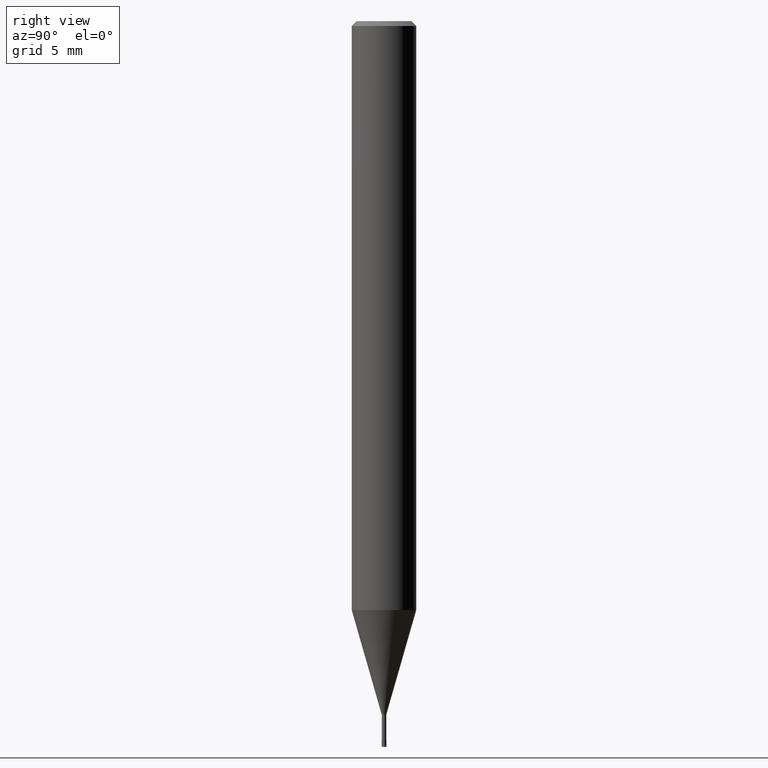
[diagram: clean part render]
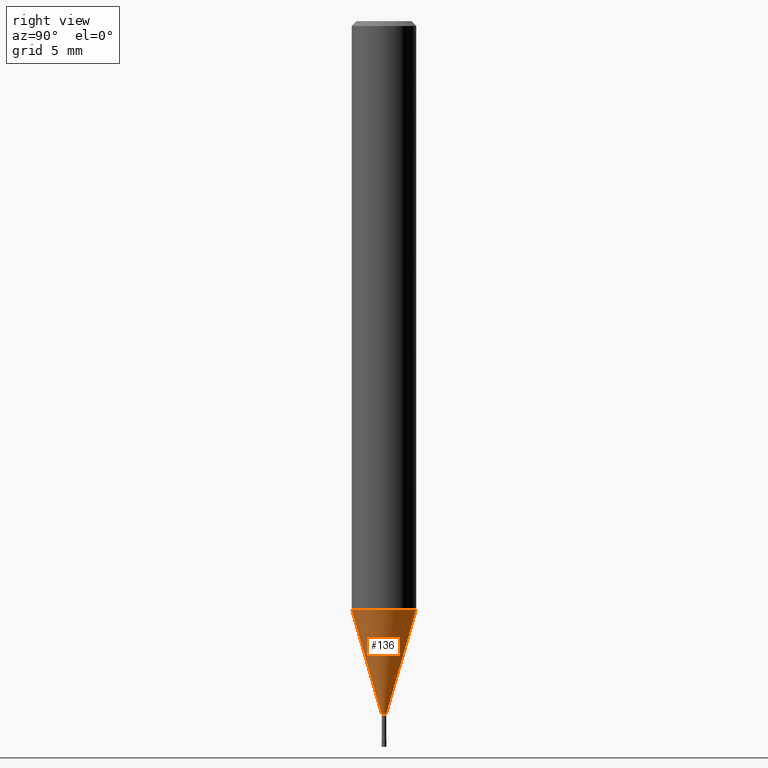
[diagram: same view with one face highlighted and labeled with its STEP entity id]
A machine part, right view. The second image highlights one B-rep face of the part: STEP entity #136.
In plain terms, the highlighted conical surface has half-angle 15.999 deg.
Its self-contained STEP definition (entity closure, byte-faithful):
#118=VERTEX_POINT('',#260);
#136=ADVANCED_FACE('',(#284),#285,.T.);
#142=EDGE_CURVE('',#118,#150,#291,.T.);
#150=VERTEX_POINT('',#299);
#158=VERTEX_POINT('',#307);
#182=EDGE_CURVE('',#118,#186,#332,.T.);
#186=VERTEX_POINT('',#336);
#190=EDGE_CURVE('',#186,#158,#341,.T.);
#192=EDGE_CURVE('',#158,#150,#343,.T.);
#260=CARTESIAN_POINT('',(0.0,1.99995,-36.513));
#284=FACE_OUTER_BOUND('',#441,.T.);
#285=CONICAL_SURFACE('',#442,1.06995,0.27923596926092);
#291=CIRCLE('',#450,1.99995);
#299=CARTESIAN_POINT('',(2.44915147732706E-016,-1.99995,-36.513));
#307=CARTESIAN_POINT('',(1.71383659217442E-017,-0.13995,-43.0));
#332=LINE('',#503,#504);
#336=CARTESIAN_POINT('',(0.0,0.13995,-43.0));
#341=CIRCLE('',#515,0.13995);
#343=LINE('',#518,#519);
#441=EDGE_LOOP('',(#639,#640,#641,#642));
#442=AXIS2_PLACEMENT_3D('',#643,#644,#645);
#450=AXIS2_PLACEMENT_3D('',#649,#650,#651);
#503=CARTESIAN_POINT('',(-1.31026756827225E-016,1.06995,-39.7565));
#504=VECTOR('',#676,1.0);
#515=AXIS2_PLACEMENT_3D('',#688,#689,#690);
#518=CARTESIAN_POINT('',(1.31026756827225E-016,-1.06995,-39.7565));
#519=VECTOR('',#691,1.0);
#639=ORIENTED_EDGE('',*,*,#182,.F.);
#640=ORIENTED_EDGE('',*,*,#142,.T.);
#641=ORIENTED_EDGE('',*,*,#192,.F.);
#642=ORIENTED_EDGE('',*,*,#190,.F.);
#643=CARTESIAN_POINT('',(0.0,0.0,-39.7565));
#644=DIRECTION('',(-0.0,-0.0,1.0));
#645=DIRECTION('',(0.0,1.0,0.0));
#649=CARTESIAN_POINT('',(0.0,0.0,-36.513));
#650=DIRECTION('',(0.0,0.0,-1.0));
#651=DIRECTION('',(0.0,1.0,0.0));
#676=DIRECTION('',(3.37527585527933E-017,-0.275621292078393,-0.961266301995986));
#688=CARTESIAN_POINT('',(0.0,0.0,-43.0));
#689=DIRECTION('',(0.0,0.0,-1.0));
#690=DIRECTION('',(0.0,1.0,0.0));
#691=DIRECTION('',(3.37527585527934E-017,-0.275621292078393,0.961266301995986));